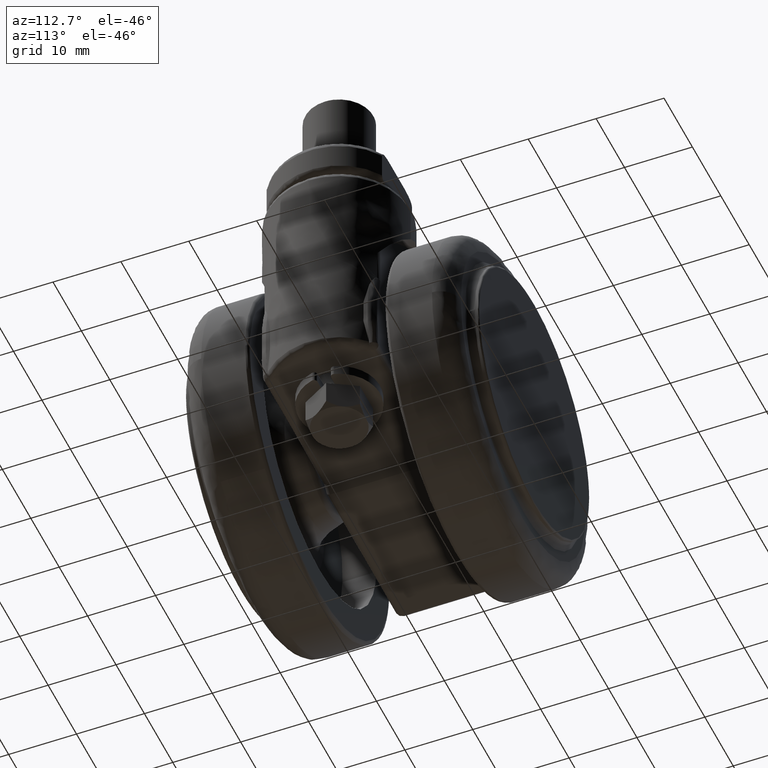
[diagram: clean part render]
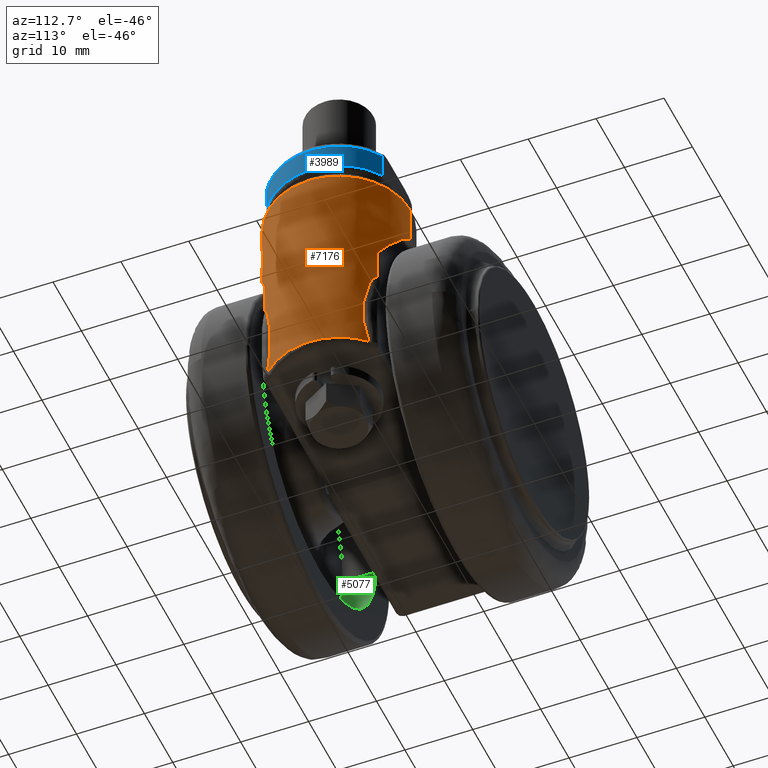
[diagram: same view with three faces highlighted in distinct colors, each labeled with its STEP entity id]
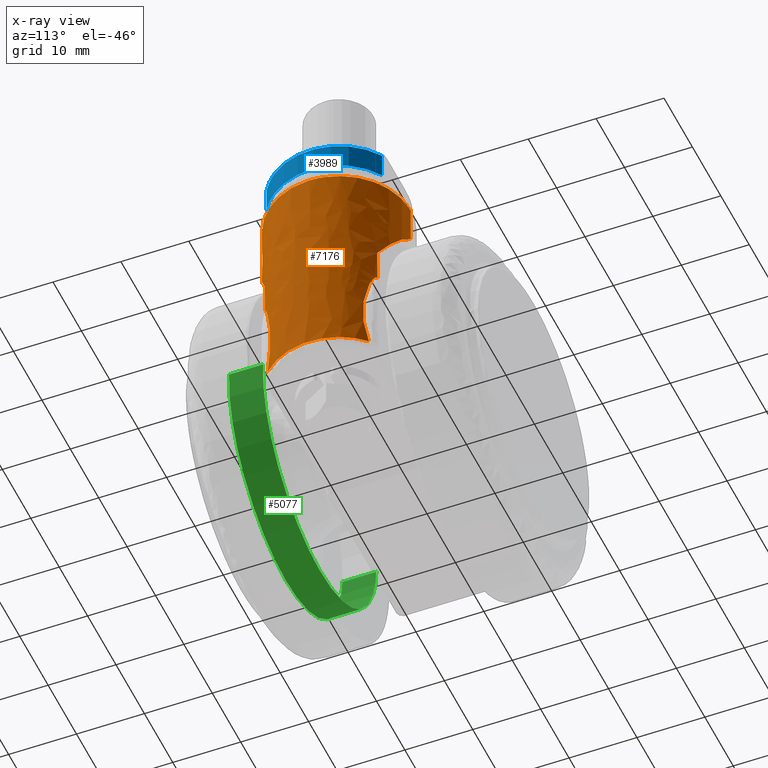
[diagram: x-ray of the same camera — body ghosted, the three highlighted faces saturated]
A machine part, auxiliary view with three faces highlighted in distinct colors.
The next image is the same camera in x-ray (body ghosted, the three faces saturated) — at least one of them is partly hidden behind the body in this view.
Their STEP definitions:

[orange] entity #7176 — the highlighted face is a freeform B-spline surface patch.
#6345=CARTESIAN_POINT('',(17.066641229069269,-10.499788519136381,26.000000000448040));
#6346=VERTEX_POINT('',#6345);
#6362=CARTESIAN_POINT('',(27.496683987472480,-0.263866002241206,26.000000000879439));
#6363=VERTEX_POINT('',#6362);
#6364=CARTESIAN_POINT('',(27.496683987472490,-0.263866002241206,26.000000000879439));
#6365=CARTESIAN_POINT('',(27.240996322990252,-10.435212787233747,26.000000000874092));
#6366=CARTESIAN_POINT('',(17.066641229069273,-10.499788519136381,26.000000000448040));
#6374=(BOUNDED_CURVE()B_SPLINE_CURVE(2,(#6364,#6365,#6366),.UNSPECIFIED.,.F.,.U.)B_SPLINE_CURVE_WITH_KNOTS((3,3),(0.004420108231629,0.248879498121108),.UNSPECIFIED.)CURVE()GEOMETRIC_REPRESENTATION_ITEM()RATIONAL_B_SPLINE_CURVE((0.989826157678330,0.713551589741604,0.997386268291256))REPRESENTATION_ITEM(''));
#6375=EDGE_CURVE('',#6363,#6346,#6374,.T.);
#6478=CARTESIAN_POINT('',(16.933358770929850,10.499788519136370,26.000000000448029));
#6479=VERTEX_POINT('',#6478);
#6480=CARTESIAN_POINT('',(27.500000000000000,0.0,26.0));
#6481=VERTEX_POINT('',#6480);
#6482=CARTESIAN_POINT('',(16.933358770929850,10.499788519136377,26.000000000448033));
#6483=CARTESIAN_POINT('',(16.966679049905721,10.500000000000000,26.000000000446637));
#6484=CARTESIAN_POINT('',(17.0,10.500000000000000,26.000000000445240));
#6485=CARTESIAN_POINT('',(27.500000000000007,10.500000000000000,26.000000000005524));
#6486=CARTESIAN_POINT('',(27.500000000000000,0.0,26.0));
#6494=(BOUNDED_CURVE()B_SPLINE_CURVE(2,(#6482,#6483,#6484,#6485,#6486),.UNSPECIFIED.,.F.,.U.)B_SPLINE_CURVE_WITH_KNOTS((3,2,3),(0.748879498121093,0.750000000000000,1.0),.UNSPECIFIED.)CURVE()GEOMETRIC_REPRESENTATION_ITEM()RATIONAL_B_SPLINE_CURVE((0.997386268291222,0.998687250392002,1.0,0.707106781186547,1.0))REPRESENTATION_ITEM(''));
#6495=EDGE_CURVE('',#6479,#6481,#6494,.T.);
#6554=CARTESIAN_POINT('',(27.500000000000000,0.0,26.0));
#6555=CARTESIAN_POINT('',(27.500000000000004,-0.131953837338587,26.000000000439716));
#6556=CARTESIAN_POINT('',(27.496683987472490,-0.263866002241206,26.000000000879439));
#6564=(BOUNDED_CURVE()B_SPLINE_CURVE(2,(#6554,#6555,#6556),.UNSPECIFIED.,.F.,.U.)B_SPLINE_CURVE_WITH_KNOTS((3,3),(0.0,0.004420108231629),.UNSPECIFIED.)CURVE()GEOMETRIC_REPRESENTATION_ITEM()RATIONAL_B_SPLINE_CURVE((1.0,0.994821521090138,0.989826157678330))REPRESENTATION_ITEM(''));
#6565=EDGE_CURVE('',#6481,#6363,#6564,.T.);
#6791=CARTESIAN_POINT('',(16.933361268720290,10.499787670645620,20.384086724455379));
#6792=VERTEX_POINT('',#6791);
#6793=CARTESIAN_POINT('',(16.933358770929850,10.499788519136370,26.000000000448029));
#6794=CARTESIAN_POINT('',(16.933361268720290,10.499787670645620,20.384086724455379));
#6795=QUASI_UNIFORM_CURVE('',1,(#6793,#6794),.UNSPECIFIED.,.F.,.U.);
#6796=EDGE_CURVE('',#6479,#6792,#6795,.T.);
#6938=CARTESIAN_POINT('',(17.066641413207300,-10.499817838973531,20.272647783629811));
#6939=VERTEX_POINT('',#6938);
#6961=CARTESIAN_POINT('',(17.066641229069269,-10.499788519136381,26.000000000448040));
#6962=CARTESIAN_POINT('',(17.066641413207300,-10.499817838973531,20.272647783629811));
#6963=QUASI_UNIFORM_CURVE('',1,(#6961,#6962),.UNSPECIFIED.,.F.,.U.);
#6964=EDGE_CURVE('',#6346,#6939,#6963,.T.);
#6969=CARTESIAN_POINT('',(16.933358770997909,10.499788519136800,26.787500000901431));
#6970=CARTESIAN_POINT('',(27.433147290134702,10.566429748138898,26.787500000901431));
#6971=CARTESIAN_POINT('',(27.499788519136800,0.066641229002096,26.787500000901431));
#6972=CARTESIAN_POINT('',(27.566429748138901,-10.433147290134706,26.787500000901431));
#6973=CARTESIAN_POINT('',(17.066641229002091,-10.499788519136800,26.787500000901431));
#6974=CARTESIAN_POINT('',(16.933358770997909,10.499788519136800,-6.307187500022629));
#6975=CARTESIAN_POINT('',(27.433147290134702,10.566429748138898,-6.307187500022629));
#6976=CARTESIAN_POINT('',(27.499788519136800,0.066641229002096,-6.307187500022629));
#6977=CARTESIAN_POINT('',(27.566429748138901,-10.433147290134706,-6.307187500022629));
#6978=CARTESIAN_POINT('',(17.066641229002091,-10.499788519136800,-6.307187500022629));
#6986=(BOUNDED_SURFACE()B_SPLINE_SURFACE(2,1,((#6969,#6974),(#6970,#6975),(#6971,#6976),(#6972,#6977),(#6973,#6978)),.UNSPECIFIED.,.F.,.F.,.U.)B_SPLINE_SURFACE_WITH_KNOTS((3,2,3),(2,2),(0.0,17.396969619669981,34.793939239339963),(0.0,33.094687500924060),.UNSPECIFIED.)GEOMETRIC_REPRESENTATION_ITEM()RATIONAL_B_SPLINE_SURFACE(((1.0,1.0),(0.707106781186548,0.707106781186548),(1.0,1.0),(0.707106781186548,0.707106781186548),(1.0,1.0)))REPRESENTATION_ITEM('')SURFACE());
#6987=ORIENTED_EDGE('',*,*,#6375,.T.);
#6988=ORIENTED_EDGE('',*,*,#6964,.T.);
#6989=CARTESIAN_POINT('',(23.444736304829000,-8.289473684210529,12.352908143309079));
#6990=VERTEX_POINT('',#6989);
#6991=CARTESIAN_POINT('',(23.444736304829000,-8.289473684210529,12.352908143309079));
#6992=CARTESIAN_POINT('',(23.277214524976479,-8.419714155359559,12.670849777285261));
#6993=CARTESIAN_POINT('',(23.102589165663691,-8.547301150580017,12.986543854283820));
#6994=CARTESIAN_POINT('',(22.740790635268340,-8.794386622875088,13.610157534952821));
#6995=CARTESIAN_POINT('',(22.553510021132009,-8.913989577578912,13.918316291558380));
#6996=CARTESIAN_POINT('',(21.972196234565899,-9.259061508743798,14.832193598176421));
#6997=CARTESIAN_POINT('',(21.558753562722330,-9.470864918476606,15.427338691197191));
#6998=CARTESIAN_POINT('',(20.676969535083430,-9.846792362548619,16.590526336774442));
#6999=CARTESIAN_POINT('',(20.208658148712569,-10.011012660287861,17.158561869106929));
#7000=CARTESIAN_POINT('',(19.460962539421310,-10.210768932297750,17.990551981273939));
#7001=CARTESIAN_POINT('',(19.204171832277890,-10.269557674833379,18.264532973260430));
#7002=CARTESIAN_POINT('',(18.806893831663370,-10.344216681830391,18.670473626070130));
#7003=CARTESIAN_POINT('',(18.672450536296331,-10.366844996823209,18.804948442408062));
#7004=CARTESIAN_POINT('',(18.399376410055481,-10.407222856164170,19.072216507424599));
#7005=CARTESIAN_POINT('',(18.261432916464230,-10.424867313323009,19.204334003151310));
#7006=CARTESIAN_POINT('',(17.778180644425969,-10.476814219947361,19.657280877899488));
#7007=CARTESIAN_POINT('',(17.426278467527190,-10.497559246845780,19.969890472513601));
#7008=CARTESIAN_POINT('',(17.066641413207300,-10.499817838973531,20.272647783629811));
#7009=B_SPLINE_CURVE_WITH_KNOTS('',3,(#6991,#6992,#6993,#6994,#6995,#6996,#6997,#6998,#6999,#7000,#7001,#7002,#7003,#7004,#7005,#7006,#7007,#7008),.UNSPECIFIED.,.F.,.U.,(4,2,2,2,2,2,2,2,4),(0.0,0.062500000000000,0.125000000000000,0.250000000000000,0.375000000000000,0.437500000000000,0.468750000000001,0.500000000000001,0.577263830940606),.UNSPECIFIED.);
#7010=EDGE_CURVE('',#6990,#6939,#7009,.T.);
#7011=ORIENTED_EDGE('',*,*,#7010,.F.);
#7012=CARTESIAN_POINT('',(23.444736304829000,-8.289473684210520,7.495513496631610));
#7013=VERTEX_POINT('',#7012);
#7014=CARTESIAN_POINT('',(23.444736304829000,-8.289473684210529,12.352908143309079));
#7015=CARTESIAN_POINT('',(23.444736304829000,-8.289473684210520,7.495513496631610));
#7016=QUASI_UNIFORM_CURVE('',1,(#7014,#7015),.UNSPECIFIED.,.F.,.U.);
#7017=EDGE_CURVE('',#6990,#7013,#7016,.T.);
#7018=ORIENTED_EDGE('',*,*,#7017,.T.);
#7019=CARTESIAN_POINT('',(24.348469228349551,-7.500000000000000,5.670277439077900));
#7020=VERTEX_POINT('',#7019);
#7021=CARTESIAN_POINT('',(23.444736304829000,-8.289473684210520,7.495513496631610));
#7022=CARTESIAN_POINT('',(23.463765574298520,-8.274679183561092,7.498481422901889));
#7023=CARTESIAN_POINT('',(23.482533942176229,-8.259982601449558,7.497245026414161));
#7024=CARTESIAN_POINT('',(23.519662820475538,-8.230708085883332,7.488535788358912));
#7025=CARTESIAN_POINT('',(23.537707023915839,-8.216378104483328,7.481087933042469));
#7026=CARTESIAN_POINT('',(23.572019207566520,-8.188958775190420,7.462474915929199));
#7027=CARTESIAN_POINT('',(23.588551724079089,-8.175659310497117,7.451186797744082));
#7028=CARTESIAN_POINT('',(23.620377338548540,-8.149909378478805,7.426026250290613));
#7029=CARTESIAN_POINT('',(23.635503761657759,-8.137594497501986,7.412296603746182));
#7030=CARTESIAN_POINT('',(23.679208029540199,-8.101826806660395,7.368671651291872));
#7031=CARTESIAN_POINT('',(23.706140356285729,-8.079529196256948,7.336383996798968));
#7032=CARTESIAN_POINT('',(23.757289495272829,-8.036799685723656,7.267891545398928));
#7033=CARTESIAN_POINT('',(23.781278974995850,-8.016554301004902,7.231892612146589));
#7034=CARTESIAN_POINT('',(23.849345225237521,-7.958644330301486,7.121415082541811));
#7035=CARTESIAN_POINT('',(23.889977161431421,-7.923430565623991,7.043979866434981));
#7036=CARTESIAN_POINT('',(23.965679098853361,-7.856962002269619,6.884682574155233));
#7037=CARTESIAN_POINT('',(24.000655634264660,-7.825777111226827,6.802744657327132));
#7038=CARTESIAN_POINT('',(24.066510210340311,-7.766363380071743,6.635590123350353));
#7039=CARTESIAN_POINT('',(24.097381483325510,-7.738135522662356,6.550285534624954));
#7040=CARTESIAN_POINT('',(24.155493284445530,-7.684431087803155,6.378252202096585));
#7041=CARTESIAN_POINT('',(24.182791039462661,-7.658901953655476,6.291360114374324));
#7042=CARTESIAN_POINT('',(24.260410581338270,-7.585611590344099,6.028533623684653));
#7043=CARTESIAN_POINT('',(24.306505623803801,-7.541115767562009,5.850471361680555));
#7044=CARTESIAN_POINT('',(24.348469228349551,-7.500000000000000,5.670277439077900));
#7045=B_SPLINE_CURVE_WITH_KNOTS('',3,(#7021,#7022,#7023,#7024,#7025,#7026,#7027,#7028,#7029,#7030,#7031,#7032,#7033,#7034,#7035,#7036,#7037,#7038,#7039,#7040,#7041,#7042,#7043,#7044),.UNSPECIFIED.,.F.,.U.,(4,2,2,2,2,2,2,2,2,2,2,4),(0.0,0.031250000000002,0.062500000000004,0.093750000000006,0.125000000000008,0.187500000000008,0.250000000000008,0.375000000000006,0.500000000000005,0.625000000000003,0.750000000000002,1.0),.UNSPECIFIED.);
#7046=EDGE_CURVE('',#7013,#7020,#7045,.T.);
#7047=ORIENTED_EDGE('',*,*,#7046,.T.);
#7048=CARTESIAN_POINT('',(24.387496796514402,-7.461560901144560,-5.499999999999930));
#7049=VERTEX_POINT('',#7048);
#7050=CARTESIAN_POINT('',(24.387496796514419,-7.461560901144566,-5.499999999999930));
#7051=CARTESIAN_POINT('',(24.591607906857501,-7.259475815494286,-4.594952900068069));
#7052=CARTESIAN_POINT('',(24.745592149765368,-7.090825080285545,-3.678596244771717));
#7053=CARTESIAN_POINT('',(24.899952683691879,-6.917134313634394,-2.282861503365935));
#7054=CARTESIAN_POINT('',(24.938587677357489,-6.872433661211703,-1.814079244724024));
#7055=CARTESIAN_POINT('',(24.976683918457908,-6.828095880238288,-1.105110921714486));
#7056=CARTESIAN_POINT('',(24.986070121916239,-6.817093930386384,-0.867823045322895));
#7057=CARTESIAN_POINT('',(24.995073604744501,-6.806527709977105,-0.510391748788572));
#7058=CARTESIAN_POINT('',(24.997228598218470,-6.803994324404482,-0.390998149344826));
#7059=CARTESIAN_POINT('',(24.999826061995481,-6.800940155339523,-0.151703705801492));
#7060=CARTESIAN_POINT('',(25.000267097319561,-6.800421074996643,-0.031636490423397));
#7061=CARTESIAN_POINT('',(24.998154063935399,-6.802906612687739,0.567438343142241));
#7062=CARTESIAN_POINT('',(24.982711880617551,-6.821160791217040,1.042809246749909));
#7063=CARTESIAN_POINT('',(24.925451237321560,-6.887608162012940,1.986258958686160));
#7064=CARTESIAN_POINT('',(24.883632944557299,-6.935780762983991,2.454340519859482));
#7065=CARTESIAN_POINT('',(24.719714948039599,-7.119191942051097,3.848583702506174));
#7066=CARTESIAN_POINT('',(24.559346268816618,-7.293383540954962,4.764760348257521));
#7067=CARTESIAN_POINT('',(24.348469228349540,-7.500000000000001,5.670277439077898));
#7068=B_SPLINE_CURVE_WITH_KNOTS('',3,(#7050,#7051,#7052,#7053,#7054,#7055,#7056,#7057,#7058,#7059,#7060,#7061,#7062,#7063,#7064,#7065,#7066,#7067),.UNSPECIFIED.,.F.,.U.,(4,2,2,2,2,2,2,2,4),(0.0,0.250000000000000,0.375000000000000,0.437500000000000,0.468750000000000,0.500000000000000,0.625000000000000,0.750000000000000,1.0),.UNSPECIFIED.);
#7069=EDGE_CURVE('',#7049,#7020,#7068,.T.);
#7070=ORIENTED_EDGE('',*,*,#7069,.F.);
#7071=CARTESIAN_POINT('',(24.387496796514402,7.461560901144600,-5.500000000000090));
#7072=VERTEX_POINT('',#7071);
#7073=CARTESIAN_POINT('',(24.387496796514402,-7.461560901144560,-5.499999999999930));
#7074=CARTESIAN_POINT('',(24.879021955885310,-6.975044496787764,-5.499999999999941));
#7075=CARTESIAN_POINT('',(25.654538373391190,-6.038195476380090,-5.499999999999972));
#7076=CARTESIAN_POINT('',(26.557007246830921,-4.457228420110489,-5.499999999999970));
#7077=CARTESIAN_POINT('',(27.150158965397772,-2.872538270329358,-5.500000000000021));
#7078=CARTESIAN_POINT('',(27.463630848414368,-1.254810542979896,-5.499999999999945));
#7079=CARTESIAN_POINT('',(27.523506287341561,0.130258590157108,-5.500000000000083));
#7080=CARTESIAN_POINT('',(27.424175341531299,1.468154730530902,-5.499999999999983));
#7081=CARTESIAN_POINT('',(27.101001992362502,3.083207046560147,-5.500000000000010));
#7082=CARTESIAN_POINT('',(26.418614307778949,4.777602972963218,-5.499999999999995));
#7083=CARTESIAN_POINT('',(25.439072584096859,6.312029396801613,-5.500000000000021));
#7084=CARTESIAN_POINT('',(24.756103696204651,7.096644660967606,-5.499999999999966));
#7085=CARTESIAN_POINT('',(24.387496796514402,7.461560901144600,-5.500000000000090));
#7086=B_SPLINE_CURVE_WITH_KNOTS('',3,(#7073,#7074,#7075,#7076,#7077,#7078,#7079,#7080,#7081,#7082,#7083,#7084,#7085),.UNSPECIFIED.,.F.,.U.,(4,1,1,1,1,1,1,1,1,1,4),(0.000000050849522,2.074751129039058,3.630837574232892,5.446271736359417,7.132016395030959,8.558389288157400,9.595785758416415,11.151862512480630,13.485989011894739,15.042073434004470,16.598130696257691),.UNSPECIFIED.);
#7087=EDGE_CURVE('',#7049,#7072,#7086,.T.);
#7088=ORIENTED_EDGE('',*,*,#7087,.T.);
#7089=CARTESIAN_POINT('',(24.348469228349600,7.500000000000000,5.670277439077640));
#7090=VERTEX_POINT('',#7089);
#7091=CARTESIAN_POINT('',(24.348469228349600,7.500000000000015,5.670277439077637));
#7092=CARTESIAN_POINT('',(24.556429449538570,7.296241428516299,4.777285323481275));
#7093=CARTESIAN_POINT('',(24.716913176272261,7.122259743142034,3.867212030633062));
#7094=CARTESIAN_POINT('',(24.854665867555529,6.968208694509642,2.701972423619113));
#7095=CARTESIAN_POINT('',(24.879054611057409,6.940571206579746,2.467537423800490));
#7096=CARTESIAN_POINT('',(24.910768689574631,6.904346189137175,2.113676444957184));
#7097=CARTESIAN_POINT('',(24.920528270621251,6.893142805216736,1.995354695177883));
#7098=CARTESIAN_POINT('',(24.938399472238739,6.872554084034672,1.757953756344199));
#7099=CARTESIAN_POINT('',(24.946518547177121,6.863160117483059,1.638748896004445));
#7100=CARTESIAN_POINT('',(24.982840107139641,6.821014948325785,1.042242429583253));
#7101=CARTESIAN_POINT('',(24.998055997967970,6.803021954710867,0.566905785580768));
#7102=CARTESIAN_POINT('',(25.001594861028138,6.798859253056889,-0.380052959832890));
#7103=CARTESIAN_POINT('',(24.989918159508932,6.812684101389323,-0.851675440138684));
#7104=CARTESIAN_POINT('',(24.940177693791739,6.870592045230560,-1.791339520130793));
#7105=CARTESIAN_POINT('',(24.902114451389039,6.914659893804307,-2.259382157528934));
#7106=CARTESIAN_POINT('',(24.799809388294470,7.029858302705028,-3.192109989975400));
#7107=CARTESIAN_POINT('',(24.735568163342641,7.100970299915750,-3.656796446062708));
#7108=CARTESIAN_POINT('',(24.619492962993920,7.224716291273144,-4.351515758666130));
#7109=CARTESIAN_POINT('',(24.577453349588211,7.268865218590044,-4.582990060655389));
#7110=CARTESIAN_POINT('',(24.487141647799099,7.361855117903759,-5.043302981962673));
#7111=CARTESIAN_POINT('',(24.438865457547092,7.410702129923942,-5.272226717022587));
#7112=CARTESIAN_POINT('',(24.387496796514380,7.461560901144600,-5.500000000000084));
#7113=B_SPLINE_CURVE_WITH_KNOTS('',3,(#7091,#7092,#7093,#7094,#7095,#7096,#7097,#7098,#7099,#7100,#7101,#7102,#7103,#7104,#7105,#7106,#7107,#7108,#7109,#7110,#7111,#7112),.UNSPECIFIED.,.F.,.U.,(4,2,2,2,2,2,2,2,2,2,4),(0.0,0.250000000000000,0.312500000000000,0.343750000000000,0.375000000000000,0.500000000000000,0.625000000000000,0.750000000000000,0.875000000000000,0.937500000000000,1.0),.UNSPECIFIED.);
#7114=EDGE_CURVE('',#7090,#7072,#7113,.T.);
#7115=ORIENTED_EDGE('',*,*,#7114,.F.);
#7116=CARTESIAN_POINT('',(23.444736304829000,8.289473684210529,7.495513496631610));
#7117=VERTEX_POINT('',#7116);
#7118=CARTESIAN_POINT('',(24.348469228349600,7.500000000000000,5.670277439077609));
#7119=CARTESIAN_POINT('',(24.306485445117129,7.541135538556476,5.850558010021233));
#7120=CARTESIAN_POINT('',(24.260339695562070,7.585681000064450,6.028829263061417));
#7121=CARTESIAN_POINT('',(24.156602438792671,7.683627415665074,6.379981162692980));
#7122=CARTESIAN_POINT('',(24.099160024349530,7.736913666786130,6.552843020518010));
#7123=CARTESIAN_POINT('',(24.000126486922550,7.826251063040437,6.804024185300461));
#7124=CARTESIAN_POINT('',(23.964934810557949,7.857623981199739,6.886397962104193));
#7125=CARTESIAN_POINT('',(23.888713907298140,7.924531042821679,7.046484906554212));
#7126=CARTESIAN_POINT('',(23.847601565044918,7.960144701152255,7.124548945417203));
#7127=CARTESIAN_POINT('',(23.779510430218298,8.018050014859179,7.234602234181208));
#7128=CARTESIAN_POINT('',(23.755713738193350,8.038123323939679,7.270140030112033));
#7129=CARTESIAN_POINT('',(23.704923070267480,8.080538429156354,7.337867775534505));
#7130=CARTESIAN_POINT('',(23.677814279607151,8.102975588712804,7.370236670928281));
#7131=CARTESIAN_POINT('',(23.619545324548181,8.150646394026250,7.428043775631136));
#7132=CARTESIAN_POINT('',(23.587961554439701,8.176224265298812,7.453965876198948));
#7133=CARTESIAN_POINT('',(23.537140041726111,8.216828478474545,7.481323532582771));
#7134=CARTESIAN_POINT('',(23.519582688638920,8.230771300586074,7.488555666724201));
#7135=CARTESIAN_POINT('',(23.482595256533710,8.259934223498295,7.497229561472284));
#7136=CARTESIAN_POINT('',(23.463642894589611,8.274774562158568,7.498462288991818));
#7137=CARTESIAN_POINT('',(23.444736304829000,8.289473684210529,7.495513496631620));
#7138=B_SPLINE_CURVE_WITH_KNOTS('',3,(#7118,#7119,#7120,#7121,#7122,#7123,#7124,#7125,#7126,#7127,#7128,#7129,#7130,#7131,#7132,#7133,#7134,#7135,#7136,#7137),.UNSPECIFIED.,.F.,.U.,(4,2,2,2,2,2,2,2,2,4),(0.0,0.250000000000002,0.500000000000004,0.625000000000005,0.750000000000006,0.812500000000005,0.875000000000003,0.937500000000002,0.968750000000001,1.0),.UNSPECIFIED.);
#7139=EDGE_CURVE('',#7090,#7117,#7138,.T.);
#7140=ORIENTED_EDGE('',*,*,#7139,.T.);
#7141=CARTESIAN_POINT('',(23.444736304829000,8.289473684210529,12.352908143309101));
#7142=VERTEX_POINT('',#7141);
#7143=CARTESIAN_POINT('',(23.444736304829000,8.289473684210529,7.495513496631610));
#7144=CARTESIAN_POINT('',(23.444736304829000,8.289473684210529,12.352908143309101));
#7145=QUASI_UNIFORM_CURVE('',1,(#7143,#7144),.UNSPECIFIED.,.F.,.U.);
#7146=EDGE_CURVE('',#7117,#7142,#7145,.T.);
#7147=ORIENTED_EDGE('',*,*,#7146,.T.);
#7148=CARTESIAN_POINT('',(16.933361268720290,10.499787670645620,20.384086724455379));
#7149=CARTESIAN_POINT('',(17.040892335886749,10.500468150988540,20.294757275005519));
#7150=CARTESIAN_POINT('',(17.147763578537791,10.499493961250041,20.204539266750910));
#7151=CARTESIAN_POINT('',(17.543614636860301,10.489933315062251,19.864980784299050));
#7152=CARTESIAN_POINT('',(17.826553255399361,10.471099055103240,19.611393593927719));
#7153=CARTESIAN_POINT('',(18.654920283921999,10.383622720683530,18.836549331296549));
#7154=CARTESIAN_POINT('',(19.179964647915050,10.284198025911801,18.301237053668999));
#7155=CARTESIAN_POINT('',(19.929341011786349,10.086411897229411,17.470270620824522));
#7156=CARTESIAN_POINT('',(20.172750352121220,10.012318764228270,17.188608666611440));
#7157=CARTESIAN_POINT('',(20.528477978724322,9.890174931671311,16.759058545925090));
#7158=CARTESIAN_POINT('',(20.645488604337540,9.847624265640476,16.614698523813061));
#7159=CARTESIAN_POINT('',(20.876400935980161,9.759037149269039,16.323611692044860));
#7160=CARTESIAN_POINT('',(20.990339356456019,9.712979579650634,16.176828926603580));
#7161=CARTESIAN_POINT('',(21.549939242215761,9.475471996184339,15.440136008301760));
#7162=CARTESIAN_POINT('',(21.967427653681099,9.261754710826889,14.839450777845540));
#7163=CARTESIAN_POINT('',(22.552159980251520,8.914868326068708,13.920555050179139));
#7164=CARTESIAN_POINT('',(22.740132789201859,8.794830282560051,13.611273249062149));
#7165=CARTESIAN_POINT('',(23.102613424265051,8.547296323395976,12.986518638496170));
#7166=CARTESIAN_POINT('',(23.277178482853309,8.419743189061620,12.670917909235980));
#7167=CARTESIAN_POINT('',(23.444736304829000,8.289473684210529,12.352908143309101));
#7168=B_SPLINE_CURVE_WITH_KNOTS('',3,(#7148,#7149,#7150,#7151,#7152,#7153,#7154,#7155,#7156,#7157,#7158,#7159,#7160,#7161,#7162,#7163,#7164,#7165,#7166,#7167),.UNSPECIFIED.,.F.,.U.,(4,2,2,2,2,2,2,2,2,4),(0.414715125651267,0.437500000000003,0.500000000000003,0.625000000000003,0.687500000000003,0.718750000000003,0.750000000000002,0.875000000000001,0.937500000000001,1.0),.UNSPECIFIED.);
#7169=EDGE_CURVE('',#6792,#7142,#7168,.T.);
#7170=ORIENTED_EDGE('',*,*,#7169,.F.);
#7171=ORIENTED_EDGE('',*,*,#6796,.F.);
#7172=ORIENTED_EDGE('',*,*,#6495,.T.);
#7173=ORIENTED_EDGE('',*,*,#6565,.T.);
#7174=EDGE_LOOP('',(#6987,#6988,#7011,#7018,#7047,#7070,#7088,#7115,#7140,#7147,#7170,#7171,#7172,#7173));
#7175=FACE_OUTER_BOUND('',#7174,.T.);
#7176=ADVANCED_FACE('',(#7175),#6986,.T.);

[blue] entity #3989 — the highlighted face is a freeform B-spline surface patch.
#3559=CARTESIAN_POINT('',(22.267826876426401,-8.500000000000000,32.399999999999999));
#3560=VERTEX_POINT('',#3559);
#3594=CARTESIAN_POINT('',(22.267826876426401,8.500000000000000,32.399999999999999));
#3595=VERTEX_POINT('',#3594);
#3596=CARTESIAN_POINT('',(22.267826876426401,8.500000000000000,32.399999999999999));
#3597=CARTESIAN_POINT('',(22.897614806451319,8.109868003762516,32.400000000000077));
#3598=CARTESIAN_POINT('',(23.818525604055498,7.386031324933546,32.399999999999878));
#3599=CARTESIAN_POINT('',(24.897252389309930,6.181174990818329,32.400000000000027));
#3600=CARTESIAN_POINT('',(25.600243711620941,5.151997456892014,32.400000000000311));
#3601=CARTESIAN_POINT('',(26.268464772761430,3.856751843855033,32.399999999999672));
#3602=CARTESIAN_POINT('',(26.744302245936829,2.446497823891808,32.400000000000141));
#3603=CARTESIAN_POINT('',(27.016851534342219,0.744013889104458,32.400000000000233));
#3604=CARTESIAN_POINT('',(27.010344494308299,-0.903198714894008,32.399999999999672));
#3605=CARTESIAN_POINT('',(26.713172697202459,-2.549237422885762,32.400000000001143));
#3606=CARTESIAN_POINT('',(26.168701734272151,-4.101605512247361,32.399999999999771));
#3607=CARTESIAN_POINT('',(25.442832149512370,-5.430093702030288,32.399999999998521));
#3608=CARTESIAN_POINT('',(24.495133818616232,-6.674494444558237,32.400000000002407));
#3609=CARTESIAN_POINT('',(23.468955120292581,-7.675706239568776,32.399999999997263));
#3610=CARTESIAN_POINT('',(22.650149048972370,-8.263070877320196,32.400000000001903));
#3611=CARTESIAN_POINT('',(22.267826876426401,-8.500000000000000,32.399999999999999));
#3612=B_SPLINE_CURVE_WITH_KNOTS('',3,(#3596,#3597,#3598,#3599,#3600,#3601,#3602,#3603,#3604,#3605,#3606,#3607,#3608,#3609,#3610,#3611),.UNSPECIFIED.,.F.,.U.,(4,1,1,1,1,1,1,1,1,1,1,1,1,4),(0.000000087443482,2.222463966336594,3.492456626341820,4.841816154388214,5.953056466112429,7.858055590968174,9.286778425751137,11.112334608801500,12.779219836899189,14.287328042890000,16.033565516343248,17.303562806510570,18.970402239335250,20.319759216059872),.UNSPECIFIED.);
#3613=EDGE_CURVE('',#3595,#3560,#3612,.T.);
#3700=CARTESIAN_POINT('',(22.267826876426451,8.500000000000000,28.600000000000001));
#3701=VERTEX_POINT('',#3700);
#3702=CARTESIAN_POINT('',(22.267826876426451,-8.500000000000000,28.600000000000001));
#3703=VERTEX_POINT('',#3702);
#3704=CARTESIAN_POINT('',(22.267826876426451,8.500000000000000,28.600000000000001));
#3705=CARTESIAN_POINT('',(22.740119452478101,8.207352084044247,28.599999999999980));
#3706=CARTESIAN_POINT('',(23.507761186029221,7.637914618184754,28.600000000000030));
#3707=CARTESIAN_POINT('',(24.543062429933919,6.611642105667595,28.600000000000271));
#3708=CARTESIAN_POINT('',(25.383375143014671,5.517311856721157,28.599999999999199));
#3709=CARTESIAN_POINT('',(26.131733851825700,4.173096396488012,28.600000000001309));
#3710=CARTESIAN_POINT('',(26.701198704882589,2.628627646905138,28.599999999998769));
#3711=CARTESIAN_POINT('',(26.993779197212881,1.007583644939186,28.600000000000289));
#3712=CARTESIAN_POINT('',(27.019447504809872,-0.610269146642777,28.600000000000211));
#3713=CARTESIAN_POINT('',(26.812372630030119,-2.135674728338608,28.600000000000339));
#3714=CARTESIAN_POINT('',(26.328345013971511,-3.736200583807780,28.599999999999319));
#3715=CARTESIAN_POINT('',(25.650154798618299,-5.090251559187971,28.600000000001550));
#3716=CARTESIAN_POINT('',(24.798572590943230,-6.305543570348585,28.599999999998811));
#3717=CARTESIAN_POINT('',(23.758479148186620,-7.439782082050718,28.600000000001380));
#3718=CARTESIAN_POINT('',(22.830102122028752,-8.151637102645362,28.599999999999682));
#3719=CARTESIAN_POINT('',(22.267826876426451,-8.500000000000000,28.600000000000001));
#3720=B_SPLINE_CURVE_WITH_KNOTS('',3,(#3704,#3705,#3706,#3707,#3708,#3709,#3710,#3711,#3712,#3713,#3714,#3715,#3716,#3717,#3718,#3719),.UNSPECIFIED.,.F.,.U.,(4,1,1,1,1,1,1,1,1,1,1,1,1,4),(0.000000087432575,1.666828697947317,2.857447372018196,4.365567791288823,5.794312187653262,7.461165616739466,9.286778425747214,10.715496564275790,12.302972407429060,13.890448542060300,15.716064529263400,16.827314622655329,18.335433803769298,20.319759216059790),.UNSPECIFIED.);
#3721=EDGE_CURVE('',#3701,#3703,#3720,.T.);
#3961=CARTESIAN_POINT('',(22.043517663105849,-8.634982894131245,32.494999999999997));
#3962=CARTESIAN_POINT('',(22.043517663105849,-8.634982894131245,28.502624999999998));
#3963=CARTESIAN_POINT('',(37.305798258842543,0.279404396223678,32.494999999999990));
#3964=CARTESIAN_POINT('',(37.305798258842543,0.279404396223678,28.502624999999991));
#3965=CARTESIAN_POINT('',(21.804021350990499,8.770483388002475,32.494999999999997));
#3966=CARTESIAN_POINT('',(21.804021350990499,8.770483388002475,28.502624999999998));
#3974=(BOUNDED_SURFACE()B_SPLINE_SURFACE(1,2,((#3961,#3963,#3965),(#3962,#3964,#3966)),.UNSPECIFIED.,.F.,.F.,.U.)B_SPLINE_SURFACE_WITH_KNOTS((2,2),(3,3),(0.0,3.992374999999999),(0.0,23.327310535879210),.UNSPECIFIED.)GEOMETRIC_REPRESENTATION_ITEM()RATIONAL_B_SPLINE_SURFACE(((1.0,0.492423560103467,1.0),(1.0,0.492423560103467,1.0)))REPRESENTATION_ITEM('')SURFACE());
#3975=CARTESIAN_POINT('',(22.267826876426451,-8.500000000000000,28.600000000000001));
#3976=CARTESIAN_POINT('',(22.267826876426401,-8.500000000000000,32.399999999999999));
#3977=QUASI_UNIFORM_CURVE('',1,(#3975,#3976),.UNSPECIFIED.,.F.,.U.);
#3978=EDGE_CURVE('',#3703,#3560,#3977,.T.);
#3979=ORIENTED_EDGE('',*,*,#3978,.F.);
#3980=ORIENTED_EDGE('',*,*,#3721,.F.);
#3981=CARTESIAN_POINT('',(22.267826876426401,8.500000000000000,32.399999999999999));
#3982=CARTESIAN_POINT('',(22.267826876426451,8.500000000000000,28.600000000000001));
#3983=QUASI_UNIFORM_CURVE('',1,(#3981,#3982),.UNSPECIFIED.,.F.,.U.);
#3984=EDGE_CURVE('',#3595,#3701,#3983,.T.);
#3985=ORIENTED_EDGE('',*,*,#3984,.F.);
#3986=ORIENTED_EDGE('',*,*,#3613,.T.);
#3987=EDGE_LOOP('',(#3979,#3980,#3985,#3986));
#3988=FACE_OUTER_BOUND('',#3987,.T.);
#3989=ADVANCED_FACE('',(#3988),#3974,.T.);

[green] entity #5077 — the highlighted face is a freeform B-spline surface patch.
#4940=CARTESIAN_POINT('',(19.962697520205840,-14.999999999999970,1.220945418977272));
#4941=VERTEX_POINT('',#4940);
#4955=CARTESIAN_POINT('',(0.0,-15.0,-20.0));
#4956=VERTEX_POINT('',#4955);
#4957=CARTESIAN_POINT('',(19.962697520205836,-14.999999999999964,1.220945418977272));
#4958=CARTESIAN_POINT('',(19.999999999984105,-14.999999999999973,0.611042544542190));
#4959=CARTESIAN_POINT('',(19.999999999984361,-14.999999999999970,-9.570813E-013));
#4960=CARTESIAN_POINT('',(19.999999999992419,-14.999999999999982,-20.000000000000465));
#4961=CARTESIAN_POINT('',(0.0,-15.0,-20.0));
#4969=(BOUNDED_CURVE()B_SPLINE_CURVE(2,(#4957,#4958,#4959,#4960,#4961),.UNSPECIFIED.,.F.,.U.)B_SPLINE_CURVE_WITH_KNOTS((3,2,3),(0.239333181541483,0.250000000000000,0.500000000000000),.UNSPECIFIED.)CURVE()GEOMETRIC_REPRESENTATION_ITEM()RATIONAL_B_SPLINE_CURVE((0.976072511674257,0.987503044828744,1.0,0.707106781186548,1.0))REPRESENTATION_ITEM(''));
#4970=EDGE_CURVE('',#4941,#4956,#4969,.T.);
#4972=CARTESIAN_POINT('',(-19.962697520205840,-14.999999999999970,-1.220945418977275));
#4973=VERTEX_POINT('',#4972);
#4974=CARTESIAN_POINT('',(0.0,-15.0,-20.0));
#4975=CARTESIAN_POINT('',(-18.814145294733585,-14.999999999999989,-19.999999999999510));
#4976=CARTESIAN_POINT('',(-19.962697520205836,-14.999999999999964,-1.220945418977275));
#4984=(BOUNDED_CURVE()B_SPLINE_CURVE(2,(#4974,#4975,#4976),.UNSPECIFIED.,.F.,.U.)B_SPLINE_CURVE_WITH_KNOTS((3,3),(0.500000000000000,0.739333181541483),.UNSPECIFIED.)CURVE()GEOMETRIC_REPRESENTATION_ITEM()RATIONAL_B_SPLINE_CURVE((1.0,0.719603736357803,0.976072511674257))REPRESENTATION_ITEM(''));
#4985=EDGE_CURVE('',#4956,#4973,#4984,.T.);
#5011=CARTESIAN_POINT('',(19.962695968437330,-15.125000000000000,1.220970790697140));
#5012=CARTESIAN_POINT('',(21.183666759134471,-15.124999999999998,-18.741725177740186));
#5013=CARTESIAN_POINT('',(1.220970790697140,-15.125000000000000,-19.962695968437330));
#5014=CARTESIAN_POINT('',(-18.741725177740186,-15.124999999999998,-21.183666759134471));
#5015=CARTESIAN_POINT('',(-19.962695968437330,-15.125000000000000,-1.220970790697140));
#5016=CARTESIAN_POINT('',(19.962695968437330,-9.871874999999999,1.220970790697140));
#5017=CARTESIAN_POINT('',(21.183666759134471,-9.871874999999999,-18.741725177740186));
#5018=CARTESIAN_POINT('',(1.220970790697140,-9.871874999999999,-19.962695968437330));
#5019=CARTESIAN_POINT('',(-18.741725177740186,-9.871874999999999,-21.183666759134471));
#5020=CARTESIAN_POINT('',(-19.962695968437330,-9.871874999999999,-1.220970790697140));
#5028=(BOUNDED_SURFACE()B_SPLINE_SURFACE(2,1,((#5011,#5016),(#5012,#5017),(#5013,#5018),(#5014,#5019),(#5015,#5020)),.UNSPECIFIED.,.F.,.F.,.U.)B_SPLINE_SURFACE_WITH_KNOTS((3,2,3),(2,2),(0.0,33.137084989847587,66.274169979695188),(0.0,5.253125000000003),.UNSPECIFIED.)GEOMETRIC_REPRESENTATION_ITEM()RATIONAL_B_SPLINE_SURFACE(((1.0,1.0),(0.707106781186548,0.707106781186548),(1.0,1.0),(0.707106781186548,0.707106781186548),(1.0,1.0)))REPRESENTATION_ITEM('')SURFACE());
#5029=ORIENTED_EDGE('',*,*,#4970,.F.);
#5030=CARTESIAN_POINT('',(19.962697501510871,-10.0,1.220945724649967));
#5031=VERTEX_POINT('',#5030);
#5032=CARTESIAN_POINT('',(19.962697520205840,-14.999999999999970,1.220945418977272));
#5033=CARTESIAN_POINT('',(19.962697501510871,-10.0,1.220945724649967));
#5034=QUASI_UNIFORM_CURVE('',1,(#5032,#5033),.UNSPECIFIED.,.F.,.U.);
#5035=EDGE_CURVE('',#4941,#5031,#5034,.T.);
#5036=ORIENTED_EDGE('',*,*,#5035,.T.);
#5037=CARTESIAN_POINT('',(0.0,-10.0,-20.0));
#5038=VERTEX_POINT('',#5037);
#5039=CARTESIAN_POINT('',(19.962697501510863,-10.0,1.220945724649968));
#5040=CARTESIAN_POINT('',(19.999999999984482,-10.000000000000002,0.611042697807070));
#5041=CARTESIAN_POINT('',(19.999999999984730,-10.0,-9.353196E-013));
#5042=CARTESIAN_POINT('',(19.999999999992600,-10.000000000000002,-20.000000000000451));
#5043=CARTESIAN_POINT('',(0.0,-10.0,-20.0));
#5051=(BOUNDED_CURVE()B_SPLINE_CURVE(2,(#5039,#5040,#5041,#5042,#5043),.UNSPECIFIED.,.F.,.U.)B_SPLINE_CURVE_WITH_KNOTS((3,2,3),(0.239333178899412,0.250000000000000,0.500000000000000),.UNSPECIFIED.)CURVE()GEOMETRIC_REPRESENTATION_ITEM()RATIONAL_B_SPLINE_CURVE((0.976072506011785,0.987503041733366,1.0,0.707106781186548,1.0))REPRESENTATION_ITEM(''));
#5052=EDGE_CURVE('',#5031,#5038,#5051,.T.);
#5053=ORIENTED_EDGE('',*,*,#5052,.T.);
#5054=CARTESIAN_POINT('',(-19.962697501510871,-10.0,-1.220945724649964));
#5055=VERTEX_POINT('',#5054);
#5056=CARTESIAN_POINT('',(0.0,-10.0,-20.0));
#5057=CARTESIAN_POINT('',(-18.814145006109651,-9.999999999999998,-19.999999999999520));
#5058=CARTESIAN_POINT('',(-19.962697501510871,-10.000000000000002,-1.220945724649964));
#5066=(BOUNDED_CURVE()B_SPLINE_CURVE(2,(#5056,#5057,#5058),.UNSPECIFIED.,.F.,.U.)B_SPLINE_CURVE_WITH_KNOTS((3,3),(0.500000000000000,0.739333178899412),.UNSPECIFIED.)CURVE()GEOMETRIC_REPRESENTATION_ITEM()RATIONAL_B_SPLINE_CURVE((1.0,0.719603739453182,0.976072506011785))REPRESENTATION_ITEM(''));
#5067=EDGE_CURVE('',#5038,#5055,#5066,.T.);
#5068=ORIENTED_EDGE('',*,*,#5067,.T.);
#5069=CARTESIAN_POINT('',(-19.962697520205840,-14.999999999999970,-1.220945418977275));
#5070=CARTESIAN_POINT('',(-19.962697501510871,-10.0,-1.220945724649964));
#5071=QUASI_UNIFORM_CURVE('',1,(#5069,#5070),.UNSPECIFIED.,.F.,.U.);
#5072=EDGE_CURVE('',#4973,#5055,#5071,.T.);
#5073=ORIENTED_EDGE('',*,*,#5072,.F.);
#5074=ORIENTED_EDGE('',*,*,#4985,.F.);
#5075=EDGE_LOOP('',(#5029,#5036,#5053,#5068,#5073,#5074));
#5076=FACE_OUTER_BOUND('',#5075,.T.);
#5077=ADVANCED_FACE('',(#5076),#5028,.F.);